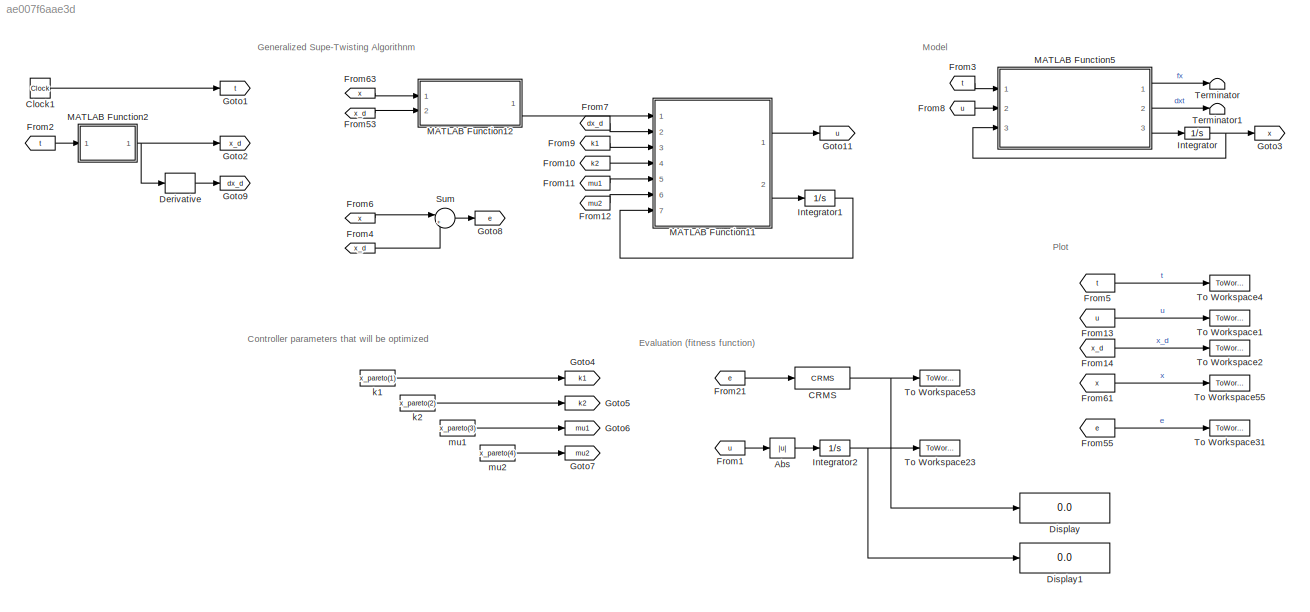
MODEL slx_ae007f6aae3d
KIND model
CONFIG AbsTol = auto
CONFIG EnableMultiTasking = off
CONFIG FixedStep = 0.005
CONFIG InitFcn = parameters_initial
CONFIG MaxStep = auto
CONFIG MinStep = auto
CONFIG RelTol = 1e-3
CONFIG SampleTimeConstraint = Unconstrained
CONFIG Solver = FixedStepAuto
CONFIG SolverName = FixedStepAuto
CONFIG StartTime = 0.0
CONFIG StopTime = 42
WORKSPACE source: external: MAT-File  (data not in archive)
BLOCK [Abs] Abs
  SaturateOnIntegerOverflow = off
BLOCK [Reference] CRMS  REF=sdolib/RMS Blocks/CRMS
  Ports = [1, 1]
  SourceBlock = sdolib/RMS Blocks/CRMS
  SourceProductBaseCode = SO
  SourceProductName = Simulink Design Optimization
  SourceType = Continuous RMS Value Block
BLOCK [Clock] Clock1
BLOCK [Derivative] Derivative
BLOCK [Display] Display
  Decimation = 1
  Ports = [1]
BLOCK [Display] Display1
  Decimation = 1
  Ports = [1]
BLOCK [From] From1
  GotoTag = u
BLOCK [From] From10
  GotoTag = k2
BLOCK [From] From11
  GotoTag = mu1
BLOCK [From] From12
  GotoTag = mu2
BLOCK [From] From13
  GotoTag = u
BLOCK [From] From14
  GotoTag = x_d
BLOCK [From] From2
  GotoTag = t
BLOCK [From] From21
  GotoTag = e
BLOCK [From] From3
  GotoTag = t
BLOCK [From] From4
  GotoTag = x_d
BLOCK [From] From5
  GotoTag = t
BLOCK [From] From53
  GotoTag = x_d
BLOCK [From] From55
  GotoTag = e
BLOCK [From] From6
  GotoTag = x
BLOCK [From] From61
  GotoTag = x
BLOCK [From] From63
  GotoTag = x
BLOCK [From] From7
  GotoTag = dx_d
BLOCK [From] From8
  GotoTag = u
BLOCK [From] From9
  GotoTag = k1
BLOCK [Goto] Goto1
  GotoTag = t
BLOCK [Goto] Goto11
  GotoTag = u
BLOCK [Goto] Goto2
  GotoTag = x_d
BLOCK [Goto] Goto3
  GotoTag = x
BLOCK [Goto] Goto4
  GotoTag = k1
BLOCK [Goto] Goto5
  GotoTag = k2
BLOCK [Goto] Goto6
  GotoTag = mu1
BLOCK [Goto] Goto7
  GotoTag = mu2
BLOCK [Goto] Goto8
  GotoTag = e
BLOCK [Goto] Goto9
  GotoTag = dx_d
BLOCK [Integrator] Integrator
  InitialCondition = x0
  Ports = [1, 1]
BLOCK [Integrator] Integrator1
  InitialCondition = v0
  Ports = [1, 1]
BLOCK [Integrator] Integrator2
  InitialCondition = v0
  Ports = [1, 1]
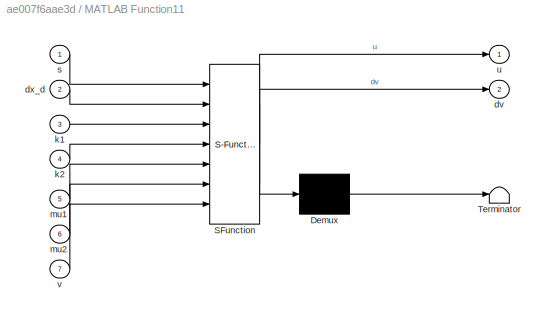
BLOCK [SubSystem] MATLAB Function11
  ErrorFcn = Stateflow.Translate.translate
  PermitHierarchicalResolution = ExplicitOnly
  Ports = [7, 2]
  RequestExecContextInheritance = off
  SFBlockType = MATLAB Function
  TreatAsAtomicUnit = on
BLOCK [Demux] MATLAB Function11/ Demux 
  DisplayOption = bar
  Outputs = 1
  Ports = [1, 1]
BLOCK [S-Function] MATLAB Function11/ SFunction 
  EnableBusSupport = on
  FunctionName = sf_sfun
  PortCounts = [7 3]
  Ports = [7, 3]
  SFcnIsStateOwnerBlock = off
  SFunctionDeploymentMode = off
  Tag = Stateflow S-Function parallel_simulink_MOO_GSTA 25
BLOCK [Terminator] MATLAB Function11/ Terminator 
BLOCK [Outport] MATLAB Function11/dv
  IconDisplay = Port number
  Port = 2
BLOCK [Inport] MATLAB Function11/dx_d
  IconDisplay = Port number
  Port = 2
BLOCK [Inport] MATLAB Function11/k1
  IconDisplay = Port number
  Port = 3
BLOCK [Inport] MATLAB Function11/k2
  IconDisplay = Port number
  Port = 4
BLOCK [Inport] MATLAB Function11/mu1
  IconDisplay = Port number
  Port = 5
BLOCK [Inport] MATLAB Function11/mu2
  IconDisplay = Port number
  Port = 6
BLOCK [Inport] MATLAB Function11/s
  IconDisplay = Port number
BLOCK [Outport] MATLAB Function11/u
  IconDisplay = Port number
BLOCK [Inport] MATLAB Function11/v
  IconDisplay = Port number
  Port = 7
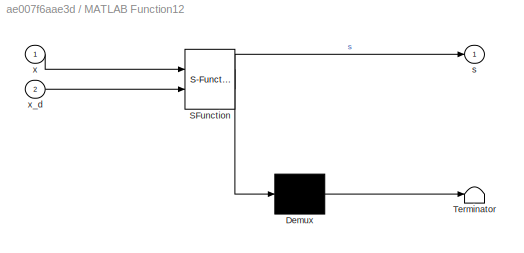
BLOCK [SubSystem] MATLAB Function12
  ErrorFcn = Stateflow.Translate.translate
  PermitHierarchicalResolution = ExplicitOnly
  Ports = [2, 1]
  RequestExecContextInheritance = off
  SFBlockType = MATLAB Function
  TreatAsAtomicUnit = on
BLOCK [Demux] MATLAB Function12/ Demux 
  DisplayOption = bar
  Outputs = 1
  Ports = [1, 1]
BLOCK [S-Function] MATLAB Function12/ SFunction 
  EnableBusSupport = on
  FunctionName = sf_sfun
  PortCounts = [2 2]
  Ports = [2, 2]
  SFcnIsStateOwnerBlock = off
  SFunctionDeploymentMode = off
  Tag = Stateflow S-Function parallel_simulink_MOO_GSTA 26
BLOCK [Terminator] MATLAB Function12/ Terminator 
BLOCK [Outport] MATLAB Function12/s
  IconDisplay = Port number
BLOCK [Inport] MATLAB Function12/x
  IconDisplay = Port number
BLOCK [Inport] MATLAB Function12/x_d
  IconDisplay = Port number
  Port = 2
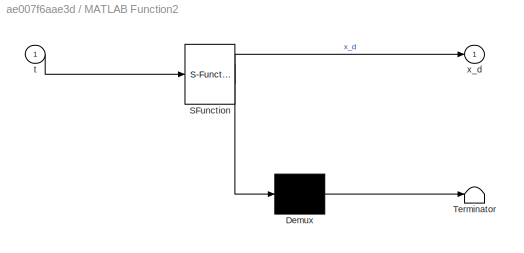
BLOCK [SubSystem] MATLAB Function2
  ErrorFcn = Stateflow.Translate.translate
  PermitHierarchicalResolution = ExplicitOnly
  Ports = [1, 1]
  RequestExecContextInheritance = off
  SFBlockType = MATLAB Function
  TreatAsAtomicUnit = on
BLOCK [Demux] MATLAB Function2/ Demux 
  DisplayOption = bar
  Outputs = 1
  Ports = [1, 1]
BLOCK [S-Function] MATLAB Function2/ SFunction 
  EnableBusSupport = on
  FunctionName = sf_sfun
  PortCounts = [1 2]
  Ports = [1, 2]
  SFcnIsStateOwnerBlock = off
  SFunctionDeploymentMode = off
  Tag = Stateflow S-Function parallel_simulink_MOO_GSTA 1
BLOCK [Terminator] MATLAB Function2/ Terminator 
BLOCK [Inport] MATLAB Function2/t
  IconDisplay = Port number
BLOCK [Outport] MATLAB Function2/x_d
  IconDisplay = Port number
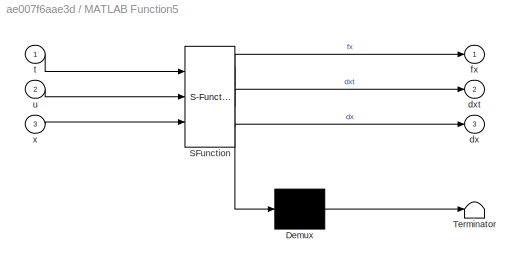
BLOCK [SubSystem] MATLAB Function5
  ErrorFcn = Stateflow.Translate.translate
  PermitHierarchicalResolution = ExplicitOnly
  Ports = [3, 3]
  RequestExecContextInheritance = off
  SFBlockType = MATLAB Function
  TreatAsAtomicUnit = on
BLOCK [Demux] MATLAB Function5/ Demux 
  DisplayOption = bar
  Outputs = 1
  Ports = [1, 1]
BLOCK [S-Function] MATLAB Function5/ SFunction 
  EnableBusSupport = on
  FunctionName = sf_sfun
  PortCounts = [3 4]
  Ports = [3, 4]
  SFcnIsStateOwnerBlock = off
  SFunctionDeploymentMode = off
  Tag = Stateflow S-Function parallel_simulink_MOO_GSTA 9
BLOCK [Terminator] MATLAB Function5/ Terminator 
BLOCK [Outport] MATLAB Function5/dx
  IconDisplay = Port number
  Port = 3
BLOCK [Outport] MATLAB Function5/dxt
  IconDisplay = Port number
  Port = 2
BLOCK [Outport] MATLAB Function5/fx
  IconDisplay = Port number
BLOCK [Inport] MATLAB Function5/t
  IconDisplay = Port number
BLOCK [Inport] MATLAB Function5/u
  IconDisplay = Port number
  Port = 2
BLOCK [Inport] MATLAB Function5/x
  IconDisplay = Port number
  Port = 3
BLOCK [Sum] Sum
  IconShape = round
  InputSameDT = off
  Inputs = |+-
  OutDataTypeStr = Inherit: Inherit via internal rule
  Ports = [2, 1]
  SaturateOnIntegerOverflow = off
BLOCK [Terminator] Terminator
BLOCK [Terminator] Terminator1
BLOCK [ToWorkspace] To Workspace1
  FixptAsFi = on
  MaxDataPoints = inf
  Ports = [1]
  SampleTime = -1
  Save2DSignal = 3-D array (concatenate along third dimension)
  VariableName = u
BLOCK [ToWorkspace] To Workspace2
  FixptAsFi = on
  MaxDataPoints = inf
  Ports = [1]
  SampleTime = -1
  Save2DSignal = 3-D array (concatenate along third dimension)
  VariableName = x_d
BLOCK [ToWorkspace] To Workspace23
  FixptAsFi = on
  MaxDataPoints = 1
  Ports = [1]
  SampleTime = -1
  Save2DSignal = 3-D array (concatenate along third dimension)
  VariableName = INTC
BLOCK [ToWorkspace] To Workspace31
  FixptAsFi = on
  MaxDataPoints = inf
  Ports = [1]
  SampleTime = -1
  Save2DSignal = 3-D array (concatenate along third dimension)
  VariableName = e
BLOCK [ToWorkspace] To Workspace4
  FixptAsFi = on
  MaxDataPoints = inf
  Ports = [1]
  SampleTime = -1
  Save2DSignal = 3-D array (concatenate along third dimension)
  VariableName = t
BLOCK [ToWorkspace] To Workspace53
  FixptAsFi = on
  MaxDataPoints = 1
  Ports = [1]
  SampleTime = -1
  Save2DSignal = 3-D array (concatenate along third dimension)
  VariableName = RMSE
BLOCK [ToWorkspace] To Workspace55
  FixptAsFi = on
  MaxDataPoints = inf
  Ports = [1]
  SampleTime = -1
  Save2DSignal = 3-D array (concatenate along third dimension)
  VariableName = x
BLOCK [Constant] k1
  Value = x_pareto(1)
BLOCK [Constant] k2
  Value = x_pareto(2)
BLOCK [Constant] mu1
  Value = x_pareto(3)
BLOCK [Constant] mu2
  Value = x_pareto(4)
ANNOTATION (root): Controller parameters that will be optimized
ANNOTATION (root): Evaluation (fitness function)
ANNOTATION (root): Generalized Supe-Twisting Algorithnm
ANNOTATION (root): Model
ANNOTATION (root): Plot
LINE Abs:1 -> Integrator2:1
NET CRMS:1 -> Display:1, To Workspace53:1
LINE Clock1:1 -> Goto1:1
LINE Derivative:1 -> Goto9:1
LINE From10:1 -> MATLAB Function11:4
LINE From11:1 -> MATLAB Function11:5
LINE From12:1 -> MATLAB Function11:6
LINE From13:1 -> To Workspace1:1
LINE From14:1 -> To Workspace2:1
LINE From1:1 -> Abs:1
LINE From21:1 -> CRMS:1
LINE From2:1 -> MATLAB Function2:1
LINE From3:1 -> MATLAB Function5:1
LINE From4:1 -> Sum:2
LINE From53:1 -> MATLAB Function12:2
LINE From55:1 -> To Workspace31:1
LINE From5:1 -> To Workspace4:1
LINE From61:1 -> To Workspace55:1
LINE From63:1 -> MATLAB Function12:1
LINE From6:1 -> Sum:1
LINE From7:1 -> MATLAB Function11:2
LINE From8:1 -> MATLAB Function5:2
LINE From9:1 -> MATLAB Function11:3
LINE Integrator1:1 -> MATLAB Function11:7
NET Integrator2:1 -> Display1:1, To Workspace23:1
NET Integrator:1 -> Goto3:1, MATLAB Function5:3
LINE MATLAB Function11:1 -> Goto11:1
LINE MATLAB Function11:2 -> Integrator1:1
LINE MATLAB Function12:1 -> MATLAB Function11:1
NET MATLAB Function2:1 -> Derivative:1, Goto2:1
LINE MATLAB Function5:1 -> Terminator:1
LINE MATLAB Function5:2 -> Terminator1:1
LINE MATLAB Function5:3 -> Integrator:1
LINE Sum:1 -> Goto8:1
LINE k1:1 -> Goto4:1
LINE k2:1 -> Goto5:1
LINE mu1:1 -> Goto6:1
LINE mu2:1 -> Goto7:1
note: NET lines group one-source signal fan-out (src -> all destinations, sorted); 1:1 wires keep LINE
CHART MATLAB Function2 states=1 transitions=1
  STATE_LABEL 'eML_blk_kernel()'
  STATE_LABEL 'SCRIPT:\nfunction x_d= desired(t)\n\nx_d=sin(0.8*t)+cos(t);\n\nend'
CHART MATLAB Function5 states=1 transitions=1
  STATE_LABEL 'eML_blk_kernel()'
  STATE_LABEL 'SCRIPT:\nfunction [fx,dxt,dx]= Model(t,u,x)\n\nfx=0.6*sin(x)+0.7*x^2-1.5*x;\ndxt=0.8*cos(x)*x+0.05*cos(3*t)+0.08*sin(t);\ndx=fx+dxt+u;\n\nend'
CHART MATLAB Function11 states=1 transitions=1
  STATE_LABEL 'eML_blk_kernel()'
  STATE_LABEL 'SCRIPT:\nfunction [u,dv] = GSTA(s,dx_d,k1,k2,mu1,mu2,v)\n\nfa_1s=mu1*abs(s)^0.5*sign(s)+mu2*s;\nfa_2s=0.5*mu1^2*sign(s)+1.5*mu1*mu2*abs(s)^0.5*sign(s)+mu2^2*s;\ndv=-k2*fa_2s;\nu=dx_d-k1*fa_1s+v;\n\nend\n\n\n'
CHART MATLAB Function12 states=1 transitions=1
  STATE_LABEL 'eML_blk_kernel()'
  STATE_LABEL 'SCRIPT:\nfunction s = sliding_face(x,x_d)\n\ns=x-x_d;\n\nend\n\n\n'
